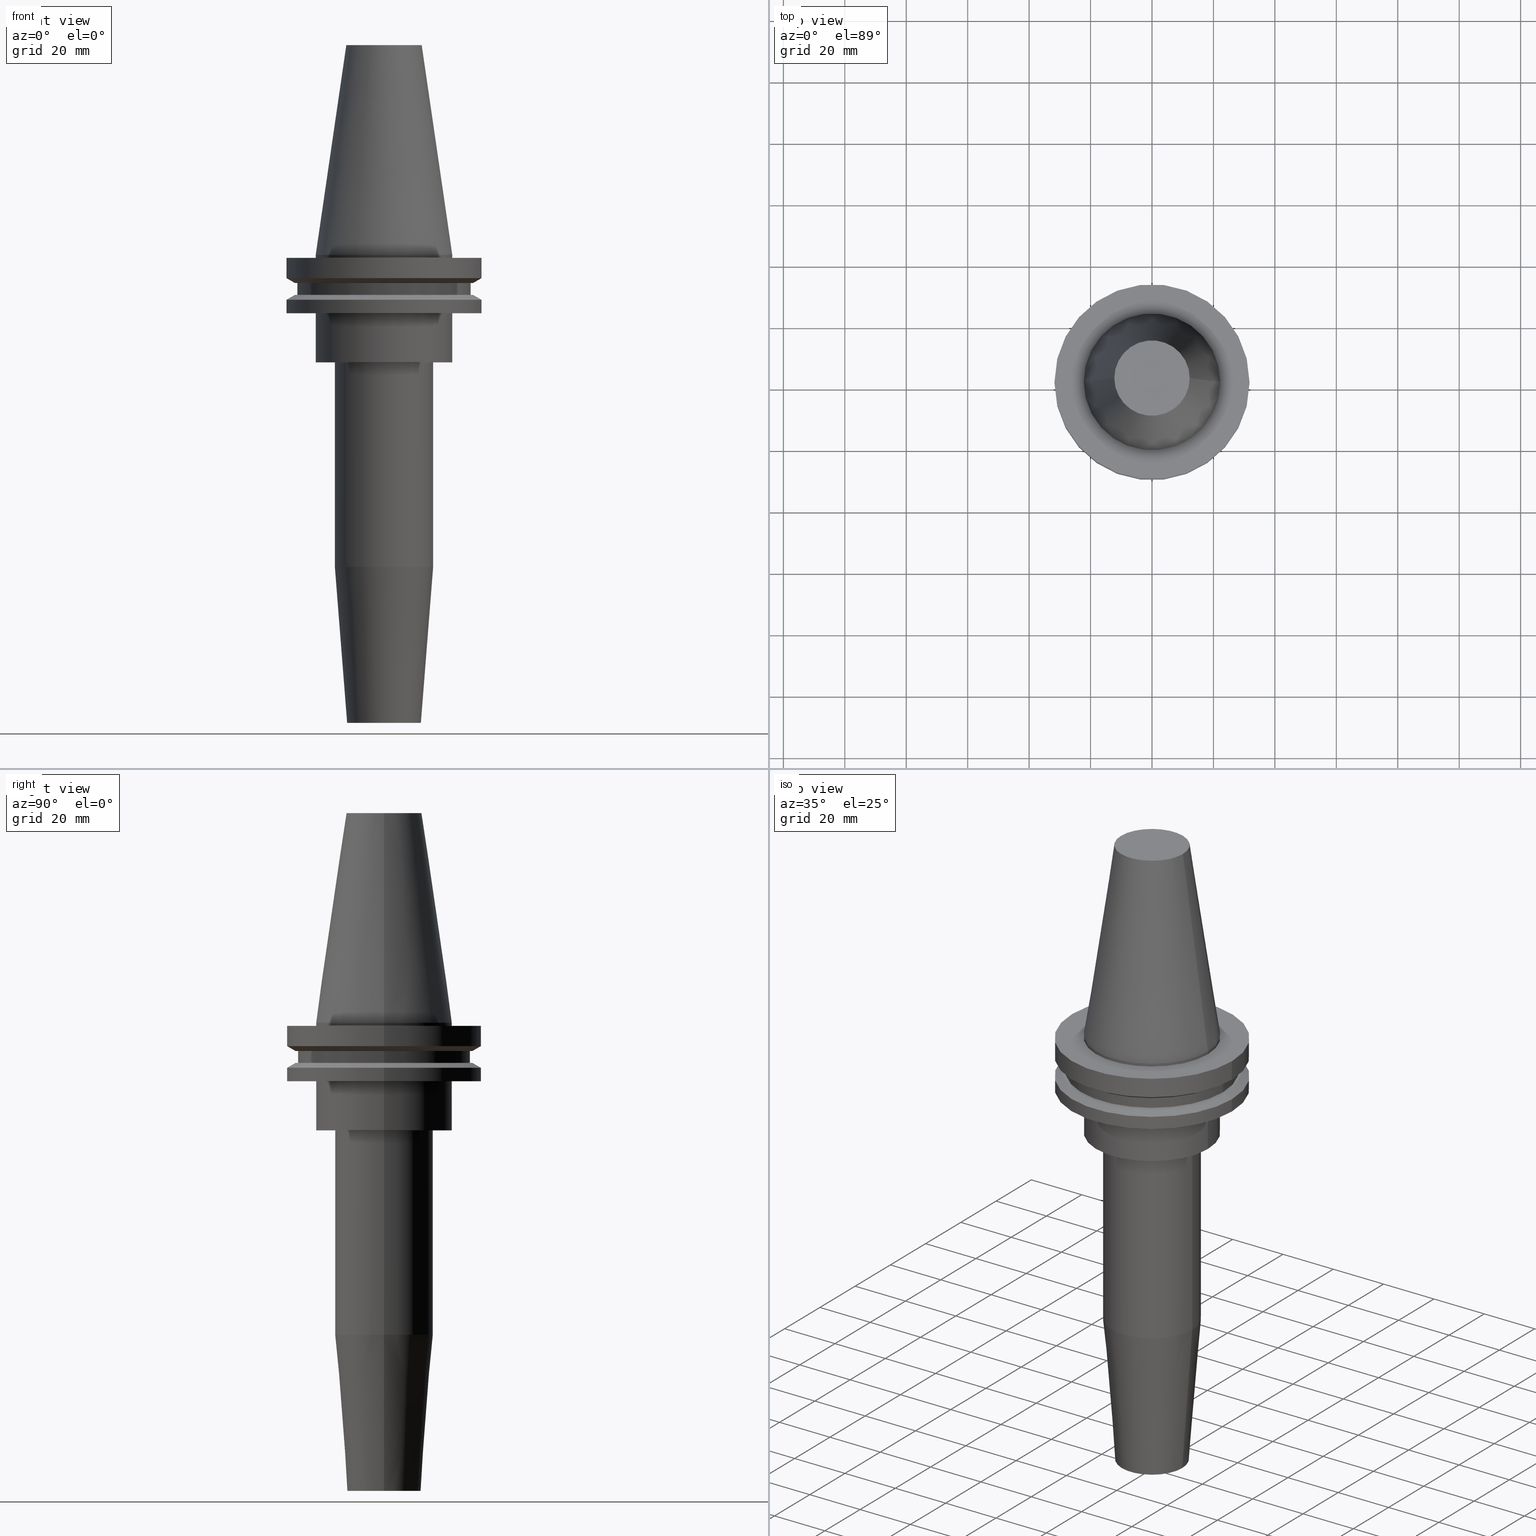
[diagram: canonical four-view strip — front | top / right | iso, engineering-drawing reading convention]
A machine part, canonical four-view strip (front | top / right | iso — engineering-drawing reading convention). The complete STEP part file that produces these views, byte-faithful:
ISO-10303-21;
HEADER;
FILE_DESCRIPTION (( 'STEP AP203' ),
    '1' );
FILE_NAME ('BCV40-SF_500-6.STEP',
    '2022-02-23T17:22:49',
    ( '' ),
    ( '' ),
    'SwSTEP 2.0',
    'SolidWorks 2021',
    '' );
FILE_SCHEMA (( 'CONFIG_CONTROL_DESIGN' ));
ENDSEC;

DATA;
#1 = CARTESIAN_POINT ( 'NONE',  ( -16.00000000000000000, 1.959434878635765131E-15, -35.04999999999999716 ) ) ;
#2 = ORIENTED_EDGE ( 'NONE', *, *, #822, .F. ) ;
#3 = ADVANCED_FACE ( 'NONE', ( #448 ), #180, .F. ) ;
#4 = DIRECTION ( 'NONE',  ( 1.000000000000000000, 0.000000000000000000, 0.000000000000000000 ) ) ;
#5 = FACE_OUTER_BOUND ( 'NONE', #274, .T. ) ;
#6 = ORIENTED_EDGE ( 'NONE', *, *, #617, .F. ) ;
#7 = AXIS2_PLACEMENT_3D ( 'NONE', #243, #240, #570 ) ;
#8 = CARTESIAN_POINT ( 'NONE',  ( 0.000000000000000000, 28.17999999999999972, -13.05499999999999794 ) ) ;
#9 = ADVANCED_FACE ( 'NONE', ( #520 ), #375, .T. ) ;
#10 = PLANE ( 'NONE',  #837 ) ;
#11 = EDGE_LOOP ( 'NONE', ( #390, #339, #176, #220 ) ) ;
#12 = CARTESIAN_POINT ( 'NONE',  ( 0.000000000000000000, 0.000000000000000000, -35.04999999999999716 ) ) ;
#13 = CARTESIAN_POINT ( 'NONE',  ( 31.75000000000000000, 0.000000000000000000, -14.65472339340266572 ) ) ;
#14 = ORIENTED_EDGE ( 'NONE', *, *, #500, .F. ) ;
#15 = CIRCLE ( 'NONE', #196, 22.22500000000000142 ) ;
#16 = PLANE ( 'NONE',  #797 ) ;
#17 = CARTESIAN_POINT ( 'NONE',  ( 0.000000000000000000, 0.000000000000000000, -101.5751810552958716 ) ) ;
#18 = ORIENTED_EDGE ( 'NONE', *, *, #641, .T. ) ;
#19 = CIRCLE ( 'NONE', #154, 28.97919780457008088 ) ;
#20 = DIRECTION ( 'NONE',  ( -0.000000000000000000, -0.000000000000000000, 1.000000000000000000 ) ) ;
#21 = CARTESIAN_POINT ( 'NONE',  ( 0.000000000000000000, 0.000000000000000000, -13.05499999999999794 ) ) ;
#22 = VERTEX_POINT ( 'NONE', #103 ) ;
#23 = CLOSED_SHELL ( 'NONE', ( #528, #671, #676, #37, #123, #590, #499, #556, #565, #151, #159, #9, #279, #591, #596, #549, #564, #650, #701, #465, #45, #188, #625, #581, #160, #218, #793, #801, #305, #3 ) ) ;
#24 =( NAMED_UNIT ( * ) SI_UNIT ( $, .STERADIAN. ) SOLID_ANGLE_UNIT ( ) );
#25 = DIRECTION ( 'NONE',  ( 1.000000000000000000, 0.000000000000000000, 0.000000000000000000 ) ) ;
#26 = ORIENTED_EDGE ( 'NONE', *, *, #437, .T. ) ;
#27 = PRODUCT_RELATED_PRODUCT_CATEGORY ( 'detail', '', ( #129 ) ) ;
#28 = LOCAL_TIME ( 11, 22, 49.00000000000000000, #431 ) ;
#29 = AXIS2_PLACEMENT_3D ( 'NONE', #208, #471, #601 ) ;
#30 = CARTESIAN_POINT ( 'NONE',  ( 0.000000000000000000, 0.000000000000000000, 0.000000000000000000 ) ) ;
#31 = ORIENTED_EDGE ( 'NONE', *, *, #382, .F. ) ;
#32 = AXIS2_PLACEMENT_3D ( 'NONE', #670, #408, #276 ) ;
#33 = DIRECTION ( 'NONE',  ( 1.000000000000000000, 0.000000000000000000, 0.000000000000000000 ) ) ;
#34 = LINE ( 'NONE', #819, #614 ) ;
#35 = EDGE_LOOP ( 'NONE', ( #800, #743, #455, #458 ) ) ;
#36 = EDGE_CURVE ( 'NONE', #814, #128, #687, .T. ) ;
#37 = ADVANCED_FACE ( 'NONE', ( #847 ), #579, .T. ) ;
#38 = CARTESIAN_POINT ( 'NONE',  ( 0.000000000000000000, 0.000000000000000000, -1.000000000000000888 ) ) ;
#39 = ORIENTED_EDGE ( 'NONE', *, *, #332, .T. ) ;
#40 = EDGE_CURVE ( 'NONE', #623, #814, #192, .T. ) ;
#41 = MECHANICAL_CONTEXT ( 'NONE', #696, 'mechanical' ) ;
#42 = DIRECTION ( 'NONE',  ( 1.000000000000000000, 0.000000000000000000, 0.000000000000000000 ) ) ;
#43 = EDGE_LOOP ( 'NONE', ( #788, #810 ) ) ;
#44 = AXIS2_PLACEMENT_3D ( 'NONE', #394, #120, #844 ) ;
#45 = ADVANCED_FACE ( 'NONE', ( #719, #127 ), #395, .F. ) ;
#46 = PERSON_AND_ORGANIZATION ( #367, #337 ) ;
#47 = FACE_OUTER_BOUND ( 'NONE', #616, .T. ) ;
#48 = ORIENTED_EDGE ( 'NONE', *, *, #648, .F. ) ;
#49 = AXIS2_PLACEMENT_3D ( 'NONE', #21, #751, #144 ) ;
#50 = APPROVAL_DATE_TIME ( #443, #521 ) ;
#51 = CARTESIAN_POINT ( 'NONE',  ( 0.000000000000000000, 0.000000000000000000, 68.25000000000000000 ) ) ;
#52 = ORIENTED_EDGE ( 'NONE', *, *, #417, .F. ) ;
#53 = LINE ( 'NONE', #200, #146 ) ;
#54 = EDGE_CURVE ( 'NONE', #290, #79, #53, .T. ) ;
#55 = PLANE ( 'NONE',  #44 ) ;
#56 = DIRECTION ( 'NONE',  ( 0.000000000000000000, -0.000000000000000000, 1.000000000000000000 ) ) ;
#57 = DATE_TIME_ROLE ( 'creation_date' ) ;
#58 = DIRECTION ( 'NONE',  ( 1.000000000000000000, 0.000000000000000000, 0.000000000000000000 ) ) ;
#59 = DIRECTION ( 'NONE',  ( -0.8660254037844387076, 0.000000000000000000, -0.4999999999999998890 ) ) ;
#60 = VERTEX_POINT ( 'NONE', #457 ) ;
#61 = VECTOR ( 'NONE', #75, 999.9999999999998863 ) ;
#62 = AXIS2_PLACEMENT_3D ( 'NONE', #51, #325, #513 ) ;
#63 = EDGE_CURVE ( 'NONE', #377, #228, #66, .T. ) ;
#64 = DATE_AND_TIME ( #527, #422 ) ;
#65 = CARTESIAN_POINT ( 'NONE',  ( 0.000000000000000000, 0.000000000000000000, 68.25000000000000000 ) ) ;
#66 = LINE ( 'NONE', #406, #315 ) ;
#67 = VERTEX_POINT ( 'NONE', #70 ) ;
#68 = CIRCLE ( 'NONE', #689, 12.27178102086201150 ) ;
#69 = DIRECTION ( 'NONE',  ( 1.000000000000000000, 0.000000000000000000, 0.000000000000000000 ) ) ;
#70 = CARTESIAN_POINT ( 'NONE',  ( 28.17999999999999972, 0.000000000000000000, -9.204999999999991189 ) ) ;
#71 = ORIENTED_EDGE ( 'NONE', *, *, #74, .F. ) ;
#72 = EDGE_CURVE ( 'NONE', #149, #145, #261, .T. ) ;
#73 = DIRECTION ( 'NONE',  ( 0.000000000000000000, 0.000000000000000000, -1.000000000000000000 ) ) ;
#74 = EDGE_CURVE ( 'NONE', #167, #526, #486, .T. ) ;
#75 = DIRECTION ( 'NONE',  ( -0.1443082272672999711, 0.000000000000000000, -0.9895327864921755756 ) ) ;
#76 = ORIENTED_EDGE ( 'NONE', *, *, #189, .F. ) ;
#77 = FACE_OUTER_BOUND ( 'NONE', #97, .T. ) ;
#78 = CARTESIAN_POINT ( 'NONE',  ( 0.000000000000000000, 0.000000000000000000, -13.05499999999999794 ) ) ;
#79 = VERTEX_POINT ( 'NONE', #594 ) ;
#80 = CARTESIAN_POINT ( 'NONE',  ( 0.000000000000000000, 0.000000000000000000, -7.605276606597335842 ) ) ;
#81 = CARTESIAN_POINT ( 'NONE',  ( 0.000000000000000000, 0.000000000000000000, -1.000000000000000888 ) ) ;
#82 = EDGE_LOOP ( 'NONE', ( #18, #563, #2, #347 ) ) ;
#83 = LINE ( 'NONE', #811, #774 ) ;
#84 = CARTESIAN_POINT ( 'NONE',  ( -12.00000000000000000, 1.469576158976823947E-15, -152.4000000000000057 ) ) ;
#85 = ORIENTED_EDGE ( 'NONE', *, *, #318, .F. ) ;
#86 = AXIS2_PLACEMENT_3D ( 'NONE', #666, #804, #338 ) ;
#87 = DIRECTION ( 'NONE',  ( -0.000000000000000000, -0.000000000000000000, 1.000000000000000000 ) ) ;
#88 = DIRECTION ( 'NONE',  ( 1.000000000000000000, 0.000000000000000000, 0.000000000000000000 ) ) ;
#89 = EDGE_LOOP ( 'NONE', ( #645, #736, #210, #225 ) ) ;
#90 = FACE_BOUND ( 'NONE', #716, .T. ) ;
#91 = DIRECTION ( 'NONE',  ( 0.8660254037844389297, 0.000000000000000000, 0.4999999999999995004 ) ) ;
#92 = VERTEX_POINT ( 'NONE', #1 ) ;
#93 = APPROVAL_PERSON_ORGANIZATION ( #366, #246, #621 ) ;
#94 = CARTESIAN_POINT ( 'NONE',  ( 22.22500000000000142, 0.000000000000000000, 68.25000000000000000 ) ) ;
#95 = EDGE_CURVE ( 'NONE', #575, #656, #852, .T. ) ;
#96 = DIRECTION ( 'NONE',  ( -0.000000000000000000, -0.000000000000000000, 1.000000000000000000 ) ) ;
#97 = EDGE_LOOP ( 'NONE', ( #703, #282, #770, #201 ) ) ;
#98 = EDGE_CURVE ( 'NONE', #656, #67, #405, .T. ) ;
#99 = APPLICATION_PROTOCOL_DEFINITION ( 'international standard', 'config_control_design', 1994, #612 ) ;
#100 = CC_DESIGN_PERSON_AND_ORGANIZATION_ASSIGNMENT ( #758, #816, ( #744 ) ) ;
#101 = VECTOR ( 'NONE', #633, 1000.000000000000000 ) ;
#102 = CARTESIAN_POINT ( 'NONE',  ( -22.22500000000000142, 2.721777511104992849E-15, 68.25000000000000000 ) ) ;
#103 = CARTESIAN_POINT ( 'NONE',  ( -12.27178102086201150, 0.000000000000000000, 68.25000000000000000 ) ) ;
#104 = CARTESIAN_POINT ( 'NONE',  ( 22.22500000000000142, 2.721777511104992849E-15, 0.000000000000000000 ) ) ;
#105 = AXIS2_PLACEMENT_3D ( 'NONE', #522, #330, #326 ) ;
#106 = CARTESIAN_POINT ( 'NONE',  ( -31.75000000000000000, 3.888253587292846476E-15, 68.25000000000000000 ) ) ;
#107 = ORIENTED_EDGE ( 'NONE', *, *, #843, .T. ) ;
#108 = AXIS2_PLACEMENT_3D ( 'NONE', #404, #661, #69 ) ;
#109 = CARTESIAN_POINT ( 'NONE',  ( 0.000000000000000000, 0.000000000000000000, 68.25000000000000000 ) ) ;
#110 = EDGE_LOOP ( 'NONE', ( #31, #363 ) ) ;
#111 = CIRCLE ( 'NONE', #560, 22.22500000000000142 ) ;
#112 = CARTESIAN_POINT ( 'NONE',  ( 22.22500000000000142, 0.000000000000000000, -1.000000000000000888 ) ) ;
#113 = DIRECTION ( 'NONE',  ( 0.000000000000000000, 0.000000000000000000, -1.000000000000000000 ) ) ;
#114 = DIRECTION ( 'NONE',  ( -1.000000000000000000, 0.000000000000000000, 0.000000000000000000 ) ) ;
#115 = PERSON_AND_ORGANIZATION_ROLE ( 'design_supplier' ) ;
#116 = LINE ( 'NONE', #313, #468 ) ;
#117 = VERTEX_POINT ( 'NONE', #515 ) ;
#118 = DIRECTION ( 'NONE',  ( -0.000000000000000000, -0.000000000000000000, 1.000000000000000000 ) ) ;
#119 = ORIENTED_EDGE ( 'NONE', *, *, #98, .T. ) ;
#120 = DIRECTION ( 'NONE',  ( 0.000000000000000000, -0.000000000000000000, 1.000000000000000000 ) ) ;
#121 = AXIS2_PLACEMENT_3D ( 'NONE', #143, #147, #484 ) ;
#122 = DIRECTION ( 'NONE',  ( 1.000000000000000000, 0.000000000000000000, 0.000000000000000000 ) ) ;
#123 = ADVANCED_FACE ( 'NONE', ( #183 ), #254, .T. ) ;
#124 = ORIENTED_EDGE ( 'NONE', *, *, #446, .F. ) ;
#125 = COORDINATED_UNIVERSAL_TIME_OFFSET ( 6, 0, .BEHIND. ) ;
#126 = FACE_OUTER_BOUND ( 'NONE', #595, .T. ) ;
#127 = FACE_BOUND ( 'NONE', #578, .T. ) ;
#128 = VERTEX_POINT ( 'NONE', #715 ) ;
#129 = PRODUCT ( 'BCV40-SF_500-6', 'BCV40-SF_500-6', '', ( #41 ) ) ;
#130 = DIRECTION ( 'NONE',  ( 1.000000000000000000, 0.000000000000000000, 0.000000000000000000 ) ) ;
#131 = CARTESIAN_POINT ( 'NONE',  ( 0.000000000000000000, 0.000000000000000000, 68.25000000000000000 ) ) ;
#132 = ORIENTED_EDGE ( 'NONE', *, *, #414, .T. ) ;
#133 = AXIS2_PLACEMENT_3D ( 'NONE', #373, #508, #699 ) ;
#134 = EDGE_CURVE ( 'NONE', #22, #396, #68, .T. ) ;
#135 = EDGE_CURVE ( 'NONE', #60, #836, #462, .T. ) ;
#136 = DIRECTION ( 'NONE',  ( -0.000000000000000000, -0.000000000000000000, 1.000000000000000000 ) ) ;
#137 = LINE ( 'NONE', #84, #806 ) ;
#138 = VERTEX_POINT ( 'NONE', #849 ) ;
#139 = PRODUCT_DEFINITION_FORMATION_WITH_SPECIFIED_SOURCE ( 'ANY', '', #129, .NOT_KNOWN. ) ;
#140 = FACE_OUTER_BOUND ( 'NONE', #185, .T. ) ;
#141 = DIRECTION ( 'NONE',  ( -0.07845909572783678343, 9.608468044709108930E-18, 0.9969173337331286300 ) ) ;
#142 = ORIENTED_EDGE ( 'NONE', *, *, #321, .T. ) ;
#143 = CARTESIAN_POINT ( 'NONE',  ( 0.000000000000000000, 0.000000000000000000, -152.4000000000000057 ) ) ;
#144 = DIRECTION ( 'NONE',  ( 1.000000000000000000, 0.000000000000000000, 0.000000000000000000 ) ) ;
#145 = VERTEX_POINT ( 'NONE', #258 ) ;
#146 = VECTOR ( 'NONE', #59, 1000.000000000000000 ) ;
#147 = DIRECTION ( 'NONE',  ( -0.000000000000000000, -0.000000000000000000, 1.000000000000000000 ) ) ;
#148 = CARTESIAN_POINT ( 'NONE',  ( 0.000000000000000000, 0.000000000000000000, -1.000000000000000888 ) ) ;
#149 = VERTEX_POINT ( 'NONE', #320 ) ;
#150 = CARTESIAN_POINT ( 'NONE',  ( -31.75000000000000000, 3.888253587292846476E-15, 68.25000000000000000 ) ) ;
#151 = ADVANCED_FACE ( 'NONE', ( #401 ), #534, .T. ) ;
#152 = DIRECTION ( 'NONE',  ( 1.000000000000000000, 0.000000000000000000, 0.000000000000000000 ) ) ;
#153 = ORIENTED_EDGE ( 'NONE', *, *, #135, .F. ) ;
#154 = AXIS2_PLACEMENT_3D ( 'NONE', #78, #209, #224 ) ;
#155 = DIRECTION ( 'NONE',  ( -0.000000000000000000, -0.000000000000000000, 1.000000000000000000 ) ) ;
#156 = LINE ( 'NONE', #510, #658 ) ;
#157 = ORIENTED_EDGE ( 'NONE', *, *, #802, .T. ) ;
#158 = CONICAL_SURFACE ( 'NONE', #403, 31.75000000000000000, 1.047197551196597853 ) ;
#159 = ADVANCED_FACE ( 'NONE', ( #791 ), #854, .T. ) ;
#160 = ADVANCED_FACE ( 'NONE', ( #386 ), #646, .T. ) ;
#161 = DIRECTION ( 'NONE',  ( -0.000000000000000000, -0.000000000000000000, 1.000000000000000000 ) ) ;
#162 = ORIENTED_EDGE ( 'NONE', *, *, #628, .F. ) ;
#163 = CC_DESIGN_PERSON_AND_ORGANIZATION_ASSIGNMENT ( #392, #115, ( #139 ) ) ;
#164 = CIRCLE ( 'NONE', #364, 6.350000000000003197 ) ;
#165 = APPLICATION_PROTOCOL_DEFINITION ( 'international standard', 'config_control_design', 1994, #696 ) ;
#166 = DIRECTION ( 'NONE',  ( 1.000000000000000000, 0.000000000000000000, 0.000000000000000000 ) ) ;
#167 = VERTEX_POINT ( 'NONE', #423 ) ;
#168 = AXIS2_PLACEMENT_3D ( 'NONE', #109, #199, #447 ) ;
#169 = LINE ( 'NONE', #150, #789 ) ;
#170 = CIRCLE ( 'NONE', #683, 22.22500000000000142 ) ;
#171 = CARTESIAN_POINT ( 'NONE',  ( 0.000000000000000000, 0.000000000000000000, 68.25000000000000000 ) ) ;
#172 = EDGE_LOOP ( 'NONE', ( #331, #162 ) ) ;
#173 = ORIENTED_EDGE ( 'NONE', *, *, #134, .F. ) ;
#174 = APPROVAL_STATUS ( 'not_yet_approved' ) ;
#175 = DIRECTION ( 'NONE',  ( 1.000000000000000000, 0.000000000000000000, 0.000000000000000000 ) ) ;
#176 = ORIENTED_EDGE ( 'NONE', *, *, #827, .T. ) ;
#177 = EDGE_LOOP ( 'NONE', ( #132, #107, #335, #663 ) ) ;
#178 = CC_DESIGN_APPROVAL ( #182, ( #292 ) ) ;
#179 = DIRECTION ( 'NONE',  ( 1.000000000000000000, 0.000000000000000000, 0.000000000000000000 ) ) ;
#180 = PLANE ( 'NONE',  #825 ) ;
#181 = MANIFOLD_SOLID_BREP ( 'SF', #23 ) ;
#182 = APPROVAL ( #174, 'UNSPECIFIED' ) ;
#183 = FACE_OUTER_BOUND ( 'NONE', #177, .T. ) ;
#184 = CYLINDRICAL_SURFACE ( 'NONE', #62, 31.75000000000000000 ) ;
#185 = EDGE_LOOP ( 'NONE', ( #436, #441 ) ) ;
#186 = CARTESIAN_POINT ( 'NONE',  ( 0.000000000000000000, 0.000000000000000000, -9.204999999999991189 ) ) ;
#187 = ORIENTED_EDGE ( 'NONE', *, *, #54, .F. ) ;
#188 = ADVANCED_FACE ( 'NONE', ( #5 ), #400, .T. ) ;
#189 = EDGE_CURVE ( 'NONE', #92, #853, #576, .T. ) ;
#190 = FACE_BOUND ( 'NONE', #636, .T. ) ;
#191 = AXIS2_PLACEMENT_3D ( 'NONE', #445, #113, #694 ) ;
#192 = LINE ( 'NONE', #780, #568 ) ;
#193 = VERTEX_POINT ( 'NONE', #538 ) ;
#194 = EDGE_CURVE ( 'NONE', #128, #814, #242, .T. ) ;
#195 = CARTESIAN_POINT ( 'NONE',  ( 0.000000000000000000, 0.000000000000000000, -9.205000000000005400 ) ) ;
#196 = AXIS2_PLACEMENT_3D ( 'NONE', #239, #569, #501 ) ;
#197 = DIRECTION ( 'NONE',  ( -0.000000000000000000, -0.000000000000000000, 1.000000000000000000 ) ) ;
#198 = EDGE_LOOP ( 'NONE', ( #552, #767, #48, #6 ) ) ;
#199 = DIRECTION ( 'NONE',  ( -0.000000000000000000, -0.000000000000000000, 1.000000000000000000 ) ) ;
#200 = CARTESIAN_POINT ( 'NONE',  ( -31.75000000000000000, 0.000000000000000000, -14.65472339340266572 ) ) ;
#201 = ORIENTED_EDGE ( 'NONE', *, *, #345, .F. ) ;
#202 = AXIS2_PLACEMENT_3D ( 'NONE', #81, #426, #152 ) ;
#203 = AXIS2_PLACEMENT_3D ( 'NONE', #851, #644, #260 ) ;
#204 = CARTESIAN_POINT ( 'NONE',  ( 31.75000000000000000, 0.000000000000000000, 68.25000000000000000 ) ) ;
#205 = CARTESIAN_POINT ( 'NONE',  ( 0.000000000000000000, 12.27178102086201150, 68.25000000000000000 ) ) ;
#206 = VERTEX_POINT ( 'NONE', #214 ) ;
#207 = AXIS2_PLACEMENT_3D ( 'NONE', #334, #118, #449 ) ;
#208 = CARTESIAN_POINT ( 'NONE',  ( 0.000000000000000000, 0.000000000000000000, -35.04999999999999716 ) ) ;
#209 = DIRECTION ( 'NONE',  ( -0.000000000000000000, -0.000000000000000000, 1.000000000000000000 ) ) ;
#210 = ORIENTED_EDGE ( 'NONE', *, *, #387, .T. ) ;
#211 = LOCAL_TIME ( 11, 22, 49.00000000000000000, #125 ) ;
#212 = CIRCLE ( 'NONE', #323, 31.74999999999999289 ) ;
#213 = CARTESIAN_POINT ( 'NONE',  ( -28.17999999999999972, 3.451054679997241634E-15, -9.204999999999991189 ) ) ;
#214 = CARTESIAN_POINT ( 'NONE',  ( 28.17999999999999972, 0.000000000000000000, -13.05499999999999794 ) ) ;
#215 = ORIENTED_EDGE ( 'NONE', *, *, #753, .F. ) ;
#216 = CIRCLE ( 'NONE', #467, 6.350000000000003197 ) ;
#217 = CARTESIAN_POINT ( 'NONE',  ( 0.000000000000000000, 0.000000000000000000, -9.205000000000005400 ) ) ;
#218 = ADVANCED_FACE ( 'NONE', ( #543 ), #410, .T. ) ;
#219 = CARTESIAN_POINT ( 'NONE',  ( 6.350000000000004974, 0.000000000000000000, 0.000000000000000000 ) ) ;
#220 = ORIENTED_EDGE ( 'NONE', *, *, #332, .F. ) ;
#221 = VECTOR ( 'NONE', #530, 1000.000000000000000 ) ;
#222 = CC_DESIGN_PERSON_AND_ORGANIZATION_ASSIGNMENT ( #46, #459, ( #292 ) ) ;
#223 = CARTESIAN_POINT ( 'NONE',  ( 0.000000000000000000, 12.00000000000000000, -152.4000000000000057 ) ) ;
#224 = DIRECTION ( 'NONE',  ( 1.000000000000000000, 0.000000000000000000, 0.000000000000000000 ) ) ;
#225 = ORIENTED_EDGE ( 'NONE', *, *, #229, .F. ) ;
#226 = DIRECTION ( 'NONE',  ( 1.000000000000000000, 0.000000000000000000, 0.000000000000000000 ) ) ;
#227 = CARTESIAN_POINT ( 'NONE',  ( 28.97919780457008088, 3.718590885307660666E-15, -13.05499999999999794 ) ) ;
#228 = VERTEX_POINT ( 'NONE', #13 ) ;
#229 = EDGE_CURVE ( 'NONE', #22, #138, #679, .T. ) ;
#230 = AXIS2_PLACEMENT_3D ( 'NONE', #550, #20, #611 ) ;
#231 = AXIS2_PLACEMENT_3D ( 'NONE', #480, #795, #286 ) ;
#232 = CARTESIAN_POINT ( 'NONE',  ( 0.000000000000000000, 0.000000000000000000, 0.000000000000000000 ) ) ;
#233 = CARTESIAN_POINT ( 'NONE',  ( -28.97919780457007732, 3.548928183322474856E-15, -9.205000000000005400 ) ) ;
#234 = EDGE_LOOP ( 'NONE', ( #675, #567, #157, #380 ) ) ;
#235 = CARTESIAN_POINT ( 'NONE',  ( 0.000000000000000000, 0.000000000000000000, -14.65472339340266572 ) ) ;
#236 = FACE_OUTER_BOUND ( 'NONE', #296, .T. ) ;
#237 = ORIENTED_EDGE ( 'NONE', *, *, #259, .T. ) ;
#238 = CC_DESIGN_SECURITY_CLASSIFICATION ( #292, ( #139 ) ) ;
#239 = CARTESIAN_POINT ( 'NONE',  ( 0.000000000000000000, 0.000000000000000000, 0.000000000000000000 ) ) ;
#240 = DIRECTION ( 'NONE',  ( -0.000000000000000000, -0.000000000000000000, 1.000000000000000000 ) ) ;
#241 = ORIENTED_EDGE ( 'NONE', *, *, #843, .F. ) ;
#242 = CIRCLE ( 'NONE', #202, 31.75000000000000000 ) ;
#243 = CARTESIAN_POINT ( 'NONE',  ( 0.000000000000000000, 0.000000000000000000, -13.05499999999999794 ) ) ;
#244 = ORIENTED_EDGE ( 'NONE', *, *, #532, .T. ) ;
#245 = APPROVAL_DATE_TIME ( #64, #182 ) ;
#246 = APPROVAL ( #685, 'UNSPECIFIED' ) ;
#247 = FACE_OUTER_BOUND ( 'NONE', #756, .T. ) ;
#248 = ORIENTED_EDGE ( 'NONE', *, *, #768, .T. ) ;
#249 = DIRECTION ( 'NONE',  ( -0.000000000000000000, -0.000000000000000000, 1.000000000000000000 ) ) ;
#250 = ADVANCED_BREP_SHAPE_REPRESENTATION ( 'BCV40-SF_500-6', ( #181, #409 ), #829 ) ;
#251 = AXIS2_PLACEMENT_3D ( 'NONE', #745, #807, #4 ) ;
#252 = CARTESIAN_POINT ( 'NONE',  ( 0.000000000000000000, 22.22499999999999787, -35.04999999999999716 ) ) ;
#253 = ORIENTED_EDGE ( 'NONE', *, *, #318, .T. ) ;
#254 = CYLINDRICAL_SURFACE ( 'NONE', #580, 31.75000000000000000 ) ;
#255 = EDGE_CURVE ( 'NONE', #599, #574, #170, .T. ) ;
#256 = EDGE_CURVE ( 'NONE', #145, #453, #137, .T. ) ;
#257 = DIRECTION ( 'NONE',  ( -1.000000000000000000, 0.000000000000000000, 0.000000000000000000 ) ) ;
#258 = CARTESIAN_POINT ( 'NONE',  ( -12.00000000000000000, 1.714505518806294638E-15, -152.4000000000000057 ) ) ;
#259 = EDGE_CURVE ( 'NONE', #575, #206, #312, .T. ) ;
#260 = DIRECTION ( 'NONE',  ( 1.000000000000000000, 0.000000000000000000, 0.000000000000000000 ) ) ;
#261 = CIRCLE ( 'NONE', #360, 12.00000000000000000 ) ;
#262 = CARTESIAN_POINT ( 'NONE',  ( 0.000000000000000000, 28.97919780457007732, -9.204999999999996518 ) ) ;
#263 = ORIENTED_EDGE ( 'NONE', *, *, #812, .T. ) ;
#264 = DIRECTION ( 'NONE',  ( 1.000000000000000000, 0.000000000000000000, 0.000000000000000000 ) ) ;
#265 = CIRCLE ( 'NONE', #476, 28.17999999999999972 ) ;
#266 = DIRECTION ( 'NONE',  ( 1.000000000000000000, 0.000000000000000000, 0.000000000000000000 ) ) ;
#267 = ORIENTED_EDGE ( 'NONE', *, *, #189, .T. ) ;
#268 = DIRECTION ( 'NONE',  ( -1.000000000000000000, 0.000000000000000000, -0.000000000000000000 ) ) ;
#269 = DIRECTION ( 'NONE',  ( -0.000000000000000000, -0.000000000000000000, 1.000000000000000000 ) ) ;
#270 = ORIENTED_EDGE ( 'NONE', *, *, #492, .F. ) ;
#271 = AXIS2_PLACEMENT_3D ( 'NONE', #609, #419, #281 ) ;
#272 = DIRECTION ( 'NONE',  ( -0.000000000000000000, -0.000000000000000000, 1.000000000000000000 ) ) ;
#273 = CARTESIAN_POINT ( 'NONE',  ( 0.000000000000000000, 0.000000000000000000, 0.000000000000000000 ) ) ;
#274 = EDGE_LOOP ( 'NONE', ( #427, #714, #407, #429 ) ) ;
#275 = DESIGN_CONTEXT ( 'detailed design', #612, 'design' ) ;
#276 = DIRECTION ( 'NONE',  ( 1.000000000000000000, 0.000000000000000000, 0.000000000000000000 ) ) ;
#277 = CARTESIAN_POINT ( 'NONE',  ( 0.000000000000000000, 0.000000000000000000, -116.4000000000000341 ) ) ;
#278 = ORIENTED_EDGE ( 'NONE', *, *, #387, .F. ) ;
#279 = ADVANCED_FACE ( 'NONE', ( #681 ), #10, .F. ) ;
#280 = FACE_BOUND ( 'NONE', #760, .T. ) ;
#281 = DIRECTION ( 'NONE',  ( 1.000000000000000000, 0.000000000000000000, 0.000000000000000000 ) ) ;
#282 = ORIENTED_EDGE ( 'NONE', *, *, #374, .T. ) ;
#283 = CC_DESIGN_DATE_AND_TIME_ASSIGNMENT ( #711, #57, ( #744 ) ) ;
#284 = CIRCLE ( 'NONE', #592, 28.97919780457007732 ) ;
#285 = DIRECTION ( 'NONE',  ( -0.000000000000000000, -0.000000000000000000, 1.000000000000000000 ) ) ;
#286 = DIRECTION ( 'NONE',  ( 1.000000000000000000, 0.000000000000000000, 0.000000000000000000 ) ) ;
#287 = ORIENTED_EDGE ( 'NONE', *, *, #684, .F. ) ;
#288 = DATE_AND_TIME ( #488, #815 ) ;
#289 = DIRECTION ( 'NONE',  ( 1.000000000000000000, 0.000000000000000000, 0.000000000000000000 ) ) ;
#290 = VERTEX_POINT ( 'NONE', #554 ) ;
#291 = EDGE_CURVE ( 'NONE', #206, #67, #551, .T. ) ;
#292 = SECURITY_CLASSIFICATION ( '', '', #518 ) ;
#293 = AXIS2_PLACEMENT_3D ( 'NONE', #706, #328, #257 ) ;
#294 = CARTESIAN_POINT ( 'NONE',  ( 31.75000000000000000, 0.000000000000000000, -1.000000000000000888 ) ) ;
#295 = DIRECTION ( 'NONE',  ( -0.000000000000000000, -0.000000000000000000, 1.000000000000000000 ) ) ;
#296 = EDGE_LOOP ( 'NONE', ( #544, #237, #784, #531 ) ) ;
#297 = CARTESIAN_POINT ( 'NONE',  ( 0.000000000000000000, 0.000000000000000000, 68.25000000000000000 ) ) ;
#298 = ORIENTED_EDGE ( 'NONE', *, *, #382, .T. ) ;
#299 = AXIS2_PLACEMENT_3D ( 'NONE', #131, #708, #122 ) ;
#300 = FACE_OUTER_BOUND ( 'NONE', #172, .T. ) ;
#301 = LINE ( 'NONE', #766, #101 ) ;
#302 = ORIENTED_EDGE ( 'NONE', *, *, #500, .T. ) ;
#303 = EDGE_LOOP ( 'NONE', ( #660, #481, #688, #732 ) ) ;
#304 = AXIS2_PLACEMENT_3D ( 'NONE', #235, #155, #33 ) ;
#305 = ADVANCED_FACE ( 'NONE', ( #731 ), #546, .F. ) ;
#306 = PERSON_AND_ORGANIZATION ( #367, #337 ) ;
#307 = DIRECTION ( 'NONE',  ( -0.000000000000000000, -0.000000000000000000, 1.000000000000000000 ) ) ;
#308 = DIRECTION ( 'NONE',  ( 0.000000000000000000, -0.000000000000000000, 1.000000000000000000 ) ) ;
#309 = ORIENTED_EDGE ( 'NONE', *, *, #704, .T. ) ;
#310 = EDGE_CURVE ( 'NONE', #290, #377, #19, .T. ) ;
#311 = PERSON_AND_ORGANIZATION ( #367, #337 ) ;
#312 = CIRCLE ( 'NONE', #49, 28.17999999999999972 ) ;
#313 = CARTESIAN_POINT ( 'NONE',  ( 12.00000000000000000, 0.000000000000000000, -152.4000000000000057 ) ) ;
#314 = ORIENTED_EDGE ( 'NONE', *, *, #95, .T. ) ;
#315 = VECTOR ( 'NONE', #649, 1000.000000000000000 ) ;
#316 = CARTESIAN_POINT ( 'NONE',  ( 6.350000000000007638, 0.000000000000000000, -152.4000000000000057 ) ) ;
#317 = VECTOR ( 'NONE', #723, 1000.000000000000000 ) ;
#318 = EDGE_CURVE ( 'NONE', #805, #836, #216, .T. ) ;
#319 = ORIENTED_EDGE ( 'NONE', *, *, #802, .F. ) ;
#320 = CARTESIAN_POINT ( 'NONE',  ( 12.00000000000000000, 0.000000000000000000, -152.4000000000000057 ) ) ;
#321 = EDGE_CURVE ( 'NONE', #453, #667, #726, .T. ) ;
#322 = PERSON_AND_ORGANIZATION ( #367, #337 ) ;
#323 = AXIS2_PLACEMENT_3D ( 'NONE', #389, #582, #647 ) ;
#324 = EDGE_CURVE ( 'NONE', #396, #22, #605, .T. ) ;
#325 = DIRECTION ( 'NONE',  ( -0.000000000000000000, -0.000000000000000000, 1.000000000000000000 ) ) ;
#326 = DIRECTION ( 'NONE',  ( 1.000000000000000000, 0.000000000000000000, 0.000000000000000000 ) ) ;
#327 = DATE_AND_TIME ( #381, #690 ) ;
#328 = DIRECTION ( 'NONE',  ( 0.000000000000000000, 0.000000000000000000, -1.000000000000000000 ) ) ;
#329 = AXIS2_PLACEMENT_3D ( 'NONE', #38, #161, #42 ) ;
#330 = DIRECTION ( 'NONE',  ( -0.000000000000000000, -0.000000000000000000, 1.000000000000000000 ) ) ;
#331 = ORIENTED_EDGE ( 'NONE', *, *, #72, .F. ) ;
#332 = EDGE_CURVE ( 'NONE', #634, #805, #809, .T. ) ;
#333 = CYLINDRICAL_SURFACE ( 'NONE', #168, 31.75000000000000000 ) ;
#334 = CARTESIAN_POINT ( 'NONE',  ( 0.000000000000000000, 0.000000000000000000, 68.25000000000000000 ) ) ;
#335 = ORIENTED_EDGE ( 'NONE', *, *, #36, .F. ) ;
#336 = FACE_OUTER_BOUND ( 'NONE', #35, .T. ) ;
#337 = ORGANIZATION ( 'UNSPECIFIED', 'UNSPECIFIED', '' ) ;
#338 = DIRECTION ( 'NONE',  ( 1.000000000000000000, 0.000000000000000000, 0.000000000000000000 ) ) ;
#339 = ORIENTED_EDGE ( 'NONE', *, *, #135, .T. ) ;
#340 = DIRECTION ( 'NONE',  ( -0.000000000000000000, -0.000000000000000000, 1.000000000000000000 ) ) ;
#341 = DIRECTION ( 'NONE',  ( 1.000000000000000000, 0.000000000000000000, 0.000000000000000000 ) ) ;
#342 = EDGE_LOOP ( 'NONE', ( #153, #503, #39, #253 ) ) ;
#343 = CIRCLE ( 'NONE', #329, 22.22500000000000142 ) ;
#344 = FACE_OUTER_BOUND ( 'NONE', #198, .T. ) ;
#345 = EDGE_CURVE ( 'NONE', #667, #853, #746, .T. ) ;
#346 = CARTESIAN_POINT ( 'NONE',  ( 0.000000000000000000, 0.000000000000000000, -9.205000000000005400 ) ) ;
#347 = ORIENTED_EDGE ( 'NONE', *, *, #712, .F. ) ;
#348 = EDGE_CURVE ( 'NONE', #377, #290, #383, .T. ) ;
#349 = DIRECTION ( 'NONE',  ( -1.000000000000000000, 0.000000000000000000, 0.000000000000000000 ) ) ;
#350 = CIRCLE ( 'NONE', #121, 6.350000000000007638 ) ;
#351 = DIRECTION ( 'NONE',  ( -0.000000000000000000, -0.000000000000000000, 1.000000000000000000 ) ) ;
#352 = CONICAL_SURFACE ( 'NONE', #833, 28.97919780457007732, 1.047197551196598297 ) ;
#353 = CARTESIAN_POINT ( 'NONE',  ( 0.000000000000000000, 0.000000000000000000, -14.65472339340266572 ) ) ;
#354 = DIRECTION ( 'NONE',  ( 1.000000000000000000, 0.000000000000000000, 0.000000000000000000 ) ) ;
#355 = ORIENTED_EDGE ( 'NONE', *, *, #641, .F. ) ;
#356 = VECTOR ( 'NONE', #485, 1000.000000000000000 ) ;
#357 = CARTESIAN_POINT ( 'NONE',  ( 0.000000000000000000, 0.000000000000000000, -19.04999999999999716 ) ) ;
#358 = ORIENTED_EDGE ( 'NONE', *, *, #781, .T. ) ;
#359 = CIRCLE ( 'NONE', #839, 16.00000000000000000 ) ;
#360 = AXIS2_PLACEMENT_3D ( 'NONE', #842, #249, #266 ) ;
#361 = CARTESIAN_POINT ( 'NONE',  ( 6.350000000000003197, 0.000000000000000000, -116.4000000000000341 ) ) ;
#362 = CARTESIAN_POINT ( 'NONE',  ( -22.22500000000000142, 2.721777511104992849E-15, -19.04999999999999716 ) ) ;
#363 = ORIENTED_EDGE ( 'NONE', *, *, #255, .F. ) ;
#364 = AXIS2_PLACEMENT_3D ( 'NONE', #439, #506, #765 ) ;
#365 = AXIS2_PLACEMENT_3D ( 'NONE', #30, #295, #562 ) ;
#366 = PERSON_AND_ORGANIZATION ( #367, #337 ) ;
#367 = PERSON ( 'UNSPECIFIED', 'UNSPECIFIED', 'UNSPECIFIED', ('UNSPECIFIED'), ('UNSPECIFIED'), ('UNSPECIFIED') ) ;
#368 = DIRECTION ( 'NONE',  ( -0.000000000000000000, -0.000000000000000000, 1.000000000000000000 ) ) ;
#369 = VERTEX_POINT ( 'NONE', #362 ) ;
#370 = VECTOR ( 'NONE', #307, 1000.000000000000000 ) ;
#371 = COORDINATED_UNIVERSAL_TIME_OFFSET ( 6, 0, .BEHIND. ) ;
#372 = CARTESIAN_POINT ( 'NONE',  ( 0.000000000000000000, 0.000000000000000000, -9.205000000000005400 ) ) ;
#373 = CARTESIAN_POINT ( 'NONE',  ( 0.000000000000000000, 0.000000000000000000, -1.000000000000000888 ) ) ;
#374 = EDGE_CURVE ( 'NONE', #453, #92, #635, .T. ) ;
#375 = CONICAL_SURFACE ( 'NONE', #191, 22.22500000000000142, 0.1448138465474119174 ) ;
#376 = CARTESIAN_POINT ( 'NONE',  ( -16.00000000000000000, 1.959434878635765131E-15, 0.000000000000000000 ) ) ;
#377 = VERTEX_POINT ( 'NONE', #227 ) ;
#378 = VECTOR ( 'NONE', #87, 1000.000000000000000 ) ;
#379 = FACE_OUTER_BOUND ( 'NONE', #620, .T. ) ;
#380 = ORIENTED_EDGE ( 'NONE', *, *, #812, .F. ) ;
#381 = CALENDAR_DATE ( 2022, 23, 2 ) ;
#382 = EDGE_CURVE ( 'NONE', #574, #599, #343, .T. ) ;
#383 = CIRCLE ( 'NONE', #7, 28.97919780457008088 ) ;
#384 = FACE_BOUND ( 'NONE', #424, .T. ) ;
#385 = EDGE_LOOP ( 'NONE', ( #555, #173, #511, #263 ) ) ;
#386 = FACE_OUTER_BOUND ( 'NONE', #234, .T. ) ;
#387 = EDGE_CURVE ( 'NONE', #841, #138, #821, .T. ) ;
#388 = SHAPE_DEFINITION_REPRESENTATION ( #585, #250 ) ;
#389 = CARTESIAN_POINT ( 'NONE',  ( 0.000000000000000000, 0.000000000000000000, -19.04999999999999716 ) ) ;
#390 = ORIENTED_EDGE ( 'NONE', *, *, #437, .F. ) ;
#391 = CARTESIAN_POINT ( 'NONE',  ( 0.000000000000000000, 0.000000000000000000, 0.000000000000000000 ) ) ;
#392 = PERSON_AND_ORGANIZATION ( #367, #337 ) ;
#393 = CC_DESIGN_APPROVAL ( #246, ( #744 ) ) ;
#394 = CARTESIAN_POINT ( 'NONE',  ( 0.000000000000000000, 31.74999999999999289, -19.04999999999999716 ) ) ;
#395 = PLANE ( 'NONE',  #785 ) ;
#396 = VERTEX_POINT ( 'NONE', #686 ) ;
#397 = AXIS2_PLACEMENT_3D ( 'NONE', #848, #722, #524 ) ;
#398 = CALENDAR_DATE ( 2022, 23, 2 ) ;
#399 = FACE_OUTER_BOUND ( 'NONE', #700, .T. ) ;
#400 = CONICAL_SURFACE ( 'NONE', #738, 28.97919780457007732, 1.047197551196598297 ) ;
#401 = FACE_OUTER_BOUND ( 'NONE', #607, .T. ) ;
#402 = ORIENTED_EDGE ( 'NONE', *, *, #710, .T. ) ;
#403 = AXIS2_PLACEMENT_3D ( 'NONE', #353, #73, #349 ) ;
#404 = CARTESIAN_POINT ( 'NONE',  ( 0.000000000000000000, 0.000000000000000000, -9.204999999999991189 ) ) ;
#405 = CIRCLE ( 'NONE', #512, 28.17999999999999972 ) ;
#406 = CARTESIAN_POINT ( 'NONE',  ( 31.75000000000000000, 3.888253587292846476E-15, -14.65472339340266572 ) ) ;
#407 = ORIENTED_EDGE ( 'NONE', *, *, #412, .T. ) ;
#408 = DIRECTION ( 'NONE',  ( -0.000000000000000000, -0.000000000000000000, 1.000000000000000000 ) ) ;
#409 = AXIS2_PLACEMENT_3D ( 'NONE', #232, #496, #754 ) ;
#410 = CYLINDRICAL_SURFACE ( 'NONE', #231, 16.00000000000000000 ) ;
#411 = ORIENTED_EDGE ( 'NONE', *, *, #704, .F. ) ;
#412 = EDGE_CURVE ( 'NONE', #603, #623, #156, .T. ) ;
#413 = DIRECTION ( 'NONE',  ( 0.000000000000000000, 0.000000000000000000, -1.000000000000000000 ) ) ;
#414 = EDGE_CURVE ( 'NONE', #623, #571, #509, .T. ) ;
#415 = DIRECTION ( 'NONE',  ( -0.000000000000000000, -0.000000000000000000, 1.000000000000000000 ) ) ;
#416 = ORIENTED_EDGE ( 'NONE', *, *, #740, .T. ) ;
#417 = EDGE_CURVE ( 'NONE', #167, #369, #693, .T. ) ;
#418 = DIRECTION ( 'NONE',  ( -0.000000000000000000, -0.000000000000000000, 1.000000000000000000 ) ) ;
#419 = DIRECTION ( 'NONE',  ( -0.000000000000000000, -0.000000000000000000, 1.000000000000000000 ) ) ;
#420 = ORIENTED_EDGE ( 'NONE', *, *, #134, .T. ) ;
#421 = DIRECTION ( 'NONE',  ( -0.000000000000000000, -0.000000000000000000, 1.000000000000000000 ) ) ;
#422 = LOCAL_TIME ( 11, 22, 49.00000000000000000, #657 ) ;
#423 = CARTESIAN_POINT ( 'NONE',  ( -22.22499999999999787, 2.721777511104992454E-15, -35.04999999999999716 ) ) ;
#424 = EDGE_LOOP ( 'NONE', ( #771, #267 ) ) ;
#425 = AXIS2_PLACEMENT_3D ( 'NONE', #297, #627, #558 ) ;
#426 = DIRECTION ( 'NONE',  ( -0.000000000000000000, -0.000000000000000000, 1.000000000000000000 ) ) ;
#427 = ORIENTED_EDGE ( 'NONE', *, *, #540, .F. ) ;
#428 = CYLINDRICAL_SURFACE ( 'NONE', #365, 6.350000000000004974 ) ;
#429 = ORIENTED_EDGE ( 'NONE', *, *, #776, .F. ) ;
#430 = CC_DESIGN_PERSON_AND_ORGANIZATION_ASSIGNMENT ( #311, #450, ( #139 ) ) ;
#431 = COORDINATED_UNIVERSAL_TIME_OFFSET ( 6, 0, .BEHIND. ) ;
#432 = FACE_OUTER_BOUND ( 'NONE', #494, .T. ) ;
#433 = ORIENTED_EDGE ( 'NONE', *, *, #374, .F. ) ;
#434 = AXIS2_PLACEMENT_3D ( 'NONE', #80, #421, #678 ) ;
#435 = DIRECTION ( 'NONE',  ( -0.000000000000000000, -0.000000000000000000, 1.000000000000000000 ) ) ;
#436 = ORIENTED_EDGE ( 'NONE', *, *, #310, .T. ) ;
#437 = EDGE_CURVE ( 'NONE', #60, #634, #850, .T. ) ;
#438 = AXIS2_PLACEMENT_3D ( 'NONE', #824, #762, #166 ) ;
#439 = CARTESIAN_POINT ( 'NONE',  ( 0.000000000000000000, 0.000000000000000000, -116.4000000000000341 ) ) ;
#440 = DIRECTION ( 'NONE',  ( 1.000000000000000000, 0.000000000000000000, 0.000000000000000000 ) ) ;
#441 = ORIENTED_EDGE ( 'NONE', *, *, #348, .T. ) ;
#442 = ORIENTED_EDGE ( 'NONE', *, *, #781, .F. ) ;
#443 = DATE_AND_TIME ( #398, #211 ) ;
#444 = CARTESIAN_POINT ( 'NONE',  ( 0.000000000000000000, 0.000000000000000000, -152.4000000000000057 ) ) ;
#445 = CARTESIAN_POINT ( 'NONE',  ( 0.000000000000000000, 0.000000000000000000, 0.000000000000000000 ) ) ;
#446 = EDGE_CURVE ( 'NONE', #117, #603, #284, .T. ) ;
#447 = DIRECTION ( 'NONE',  ( 1.000000000000000000, 0.000000000000000000, 0.000000000000000000 ) ) ;
#448 = FACE_OUTER_BOUND ( 'NONE', #535, .T. ) ;
#449 = DIRECTION ( 'NONE',  ( 1.000000000000000000, 0.000000000000000000, 0.000000000000000000 ) ) ;
#450 = PERSON_AND_ORGANIZATION_ROLE ( 'creator' ) ;
#451 = AXIS2_PLACEMENT_3D ( 'NONE', #631, #435, #175 ) ;
#452 = DIRECTION ( 'NONE',  ( -0.000000000000000000, -0.000000000000000000, 1.000000000000000000 ) ) ;
#453 = VERTEX_POINT ( 'NONE', #698 ) ;
#454 = CARTESIAN_POINT ( 'NONE',  ( -6.350000000000004974, 7.776507174585699066E-16, 0.000000000000000000 ) ) ;
#455 = ORIENTED_EDGE ( 'NONE', *, *, #617, .T. ) ;
#456 = FACE_OUTER_BOUND ( 'NONE', #303, .T. ) ;
#457 = CARTESIAN_POINT ( 'NONE',  ( -6.350000000000007638, 7.776507174585703010E-16, -152.4000000000000057 ) ) ;
#458 = ORIENTED_EDGE ( 'NONE', *, *, #321, .F. ) ;
#459 = PERSON_AND_ORGANIZATION_ROLE ( 'classification_officer' ) ;
#460 = VECTOR ( 'NONE', #588, 1000.000000000000000 ) ;
#461 = CYLINDRICAL_SURFACE ( 'NONE', #203, 22.22500000000000142 ) ;
#462 = LINE ( 'NONE', #454, #317 ) ;
#463 = EDGE_CURVE ( 'NONE', #599, #138, #301, .T. ) ;
#464 = ORIENTED_EDGE ( 'NONE', *, *, #54, .T. ) ;
#465 = ADVANCED_FACE ( 'NONE', ( #236 ), #573, .T. ) ;
#466 = DIRECTION ( 'NONE',  ( 1.000000000000000000, 0.000000000000000000, 0.000000000000000000 ) ) ;
#467 = AXIS2_PLACEMENT_3D ( 'NONE', #277, #477, #490 ) ;
#468 = VECTOR ( 'NONE', #577, 1000.000000000000000 ) ;
#469 = DIRECTION ( 'NONE',  ( 1.000000000000000000, 0.000000000000000000, 0.000000000000000000 ) ) ;
#470 = ORIENTED_EDGE ( 'NONE', *, *, #776, .T. ) ;
#471 = DIRECTION ( 'NONE',  ( -0.000000000000000000, -0.000000000000000000, 1.000000000000000000 ) ) ;
#472 = AXIS2_PLACEMENT_3D ( 'NONE', #391, #728, #114 ) ;
#473 = DIRECTION ( 'NONE',  ( -1.000000000000000000, 0.000000000000000000, -0.000000000000000000 ) ) ;
#474 = EDGE_LOOP ( 'NONE', ( #298, #832, #278, #319 ) ) ;
#475 = FACE_OUTER_BOUND ( 'NONE', #682, .T. ) ;
#476 = AXIS2_PLACEMENT_3D ( 'NONE', #479, #794, #739 ) ;
#477 = DIRECTION ( 'NONE',  ( -0.000000000000000000, -0.000000000000000000, 1.000000000000000000 ) ) ;
#478 = EDGE_LOOP ( 'NONE', ( #420, #792 ) ) ;
#479 = CARTESIAN_POINT ( 'NONE',  ( 0.000000000000000000, 0.000000000000000000, -13.05499999999999794 ) ) ;
#480 = CARTESIAN_POINT ( 'NONE',  ( 0.000000000000000000, 0.000000000000000000, 0.000000000000000000 ) ) ;
#481 = ORIENTED_EDGE ( 'NONE', *, *, #540, .T. ) ;
#482 = AXIS2_PLACEMENT_3D ( 'NONE', #444, #96, #289 ) ;
#483 = CIRCLE ( 'NONE', #29, 22.22499999999999787 ) ;
#484 = DIRECTION ( 'NONE',  ( 1.000000000000000000, 0.000000000000000000, 0.000000000000000000 ) ) ;
#485 = DIRECTION ( 'NONE',  ( -0.000000000000000000, -0.000000000000000000, 1.000000000000000000 ) ) ;
#486 = CIRCLE ( 'NONE', #105, 22.22499999999999787 ) ;
#487 = ORIENTED_EDGE ( 'NONE', *, *, #532, .F. ) ;
#488 = CALENDAR_DATE ( 2022, 23, 2 ) ;
#489 = CC_DESIGN_APPROVAL ( #521, ( #139 ) ) ;
#490 = DIRECTION ( 'NONE',  ( 1.000000000000000000, 0.000000000000000000, 0.000000000000000000 ) ) ;
#491 = VERTEX_POINT ( 'NONE', #769 ) ;
#492 = EDGE_CURVE ( 'NONE', #491, #79, #502, .T. ) ;
#493 = CARTESIAN_POINT ( 'NONE',  ( 22.22499999999999787, 0.000000000000000000, -35.04999999999999716 ) ) ;
#494 = EDGE_LOOP ( 'NONE', ( #416, #314, #442, #747 ) ) ;
#495 = AXIS2_PLACEMENT_3D ( 'NONE', #584, #269, #341 ) ;
#496 = DIRECTION ( 'NONE',  ( 0.000000000000000000, 0.000000000000000000, 1.000000000000000000 ) ) ;
#497 = DIRECTION ( 'NONE',  ( -0.000000000000000000, -0.000000000000000000, 1.000000000000000000 ) ) ;
#498 = ORIENTED_EDGE ( 'NONE', *, *, #712, .T. ) ;
#499 = ADVANCED_FACE ( 'NONE', ( #432 ), #507, .T. ) ;
#500 = EDGE_CURVE ( 'NONE', #369, #193, #111, .T. ) ;
#501 = DIRECTION ( 'NONE',  ( 1.000000000000000000, 0.000000000000000000, 0.000000000000000000 ) ) ;
#502 = LINE ( 'NONE', #106, #638 ) ;
#503 = ORIENTED_EDGE ( 'NONE', *, *, #768, .F. ) ;
#504 = CIRCLE ( 'NONE', #304, 31.75000000000000000 ) ;
#505 = AXIS2_PLACEMENT_3D ( 'NONE', #252, #713, #58 ) ;
#506 = DIRECTION ( 'NONE',  ( -0.000000000000000000, -0.000000000000000000, 1.000000000000000000 ) ) ;
#507 = CYLINDRICAL_SURFACE ( 'NONE', #750, 28.17999999999999972 ) ;
#508 = DIRECTION ( 'NONE',  ( -0.000000000000000000, -0.000000000000000000, 1.000000000000000000 ) ) ;
#509 = CIRCLE ( 'NONE', #451, 31.75000000000000000 ) ;
#510 = CARTESIAN_POINT ( 'NONE',  ( 28.97919780457007732, 0.000000000000000000, -9.205000000000005400 ) ) ;
#511 = ORIENTED_EDGE ( 'NONE', *, *, #229, .T. ) ;
#512 = AXIS2_PLACEMENT_3D ( 'NONE', #186, #783, #469 ) ;
#513 = DIRECTION ( 'NONE',  ( 1.000000000000000000, 0.000000000000000000, 0.000000000000000000 ) ) ;
#514 = ORIENTED_EDGE ( 'NONE', *, *, #348, .F. ) ;
#515 = CARTESIAN_POINT ( 'NONE',  ( -28.97919780457007732, 3.718590885307660666E-15, -9.205000000000005400 ) ) ;
#516 = CIRCLE ( 'NONE', #651, 31.74999999999999289 ) ;
#517 = AXIS2_PLACEMENT_3D ( 'NONE', #665, #272, #130 ) ;
#518 = SECURITY_CLASSIFICATION_LEVEL ( 'unclassified' ) ;
#519 = CYLINDRICAL_SURFACE ( 'NONE', #548, 31.75000000000000000 ) ;
#520 = FACE_OUTER_BOUND ( 'NONE', #385, .T. ) ;
#521 = APPROVAL ( #643, 'UNSPECIFIED' ) ;
#522 = CARTESIAN_POINT ( 'NONE',  ( 0.000000000000000000, 0.000000000000000000, -35.04999999999999716 ) ) ;
#523 = COORDINATED_UNIVERSAL_TIME_OFFSET ( 6, 0, .BEHIND. ) ;
#524 = DIRECTION ( 'NONE',  ( -1.000000000000000000, 0.000000000000000000, -0.000000000000000000 ) ) ;
#525 = DIRECTION ( 'NONE',  ( -0.000000000000000000, -0.000000000000000000, 1.000000000000000000 ) ) ;
#526 = VERTEX_POINT ( 'NONE', #493 ) ;
#527 = CALENDAR_DATE ( 2022, 23, 2 ) ;
#528 = ADVANCED_FACE ( 'NONE', ( #755 ), #428, .F. ) ;
#529 = CARTESIAN_POINT ( 'NONE',  ( -28.17999999999999972, 3.451054679997241634E-15, -13.05499999999999794 ) ) ;
#530 = DIRECTION ( 'NONE',  ( -0.000000000000000000, -0.000000000000000000, 1.000000000000000000 ) ) ;
#531 = ORIENTED_EDGE ( 'NONE', *, *, #98, .F. ) ;
#532 = EDGE_CURVE ( 'NONE', #526, #193, #34, .T. ) ;
#533 = FACE_OUTER_BOUND ( 'NONE', #43, .T. ) ;
#534 = CYLINDRICAL_SURFACE ( 'NONE', #207, 22.22500000000000142 ) ;
#535 = EDGE_LOOP ( 'NONE', ( #85, #779 ) ) ;
#536 = DIRECTION ( 'NONE',  ( 1.000000000000000000, 0.000000000000000000, 0.000000000000000000 ) ) ;
#537 = AXIS2_PLACEMENT_3D ( 'NONE', #273, #799, #615 ) ;
#538 = CARTESIAN_POINT ( 'NONE',  ( 22.22500000000000142, 0.000000000000000000, -19.04999999999999716 ) ) ;
#539 = ORIENTED_EDGE ( 'NONE', *, *, #737, .F. ) ;
#540 = EDGE_CURVE ( 'NONE', #117, #571, #691, .T. ) ;
#541 = DIRECTION ( 'NONE',  ( -0.000000000000000000, -0.000000000000000000, 1.000000000000000000 ) ) ;
#542 = CC_DESIGN_PERSON_AND_ORGANIZATION_ASSIGNMENT ( #306, #572, ( #129 ) ) ;
#543 = FACE_OUTER_BOUND ( 'NONE', #673, .T. ) ;
#544 = ORIENTED_EDGE ( 'NONE', *, *, #95, .F. ) ;
#545 = CARTESIAN_POINT ( 'NONE',  ( 0.000000000000000000, 0.000000000000000000, -19.04999999999999716 ) ) ;
#546 = CYLINDRICAL_SURFACE ( 'NONE', #537, 6.350000000000004974 ) ;
#547 = ORIENTED_EDGE ( 'NONE', *, *, #40, .T. ) ;
#548 = AXIS2_PLACEMENT_3D ( 'NONE', #65, #702, #264 ) ;
#549 = ADVANCED_FACE ( 'NONE', ( #47, #190 ), #55, .F. ) ;
#550 = CARTESIAN_POINT ( 'NONE',  ( 0.000000000000000000, 0.000000000000000000, -152.4000000000000057 ) ) ;
#551 = LINE ( 'NONE', #813, #709 ) ;
#552 = ORIENTED_EDGE ( 'NONE', *, *, #72, .T. ) ;
#553 = LINE ( 'NONE', #204, #846 ) ;
#554 = CARTESIAN_POINT ( 'NONE',  ( -28.97919780457008088, 0.000000000000000000, -13.05499999999999794 ) ) ;
#555 = ORIENTED_EDGE ( 'NONE', *, *, #777, .F. ) ;
#556 = ADVANCED_FACE ( 'NONE', ( #399 ), #664, .T. ) ;
#557 = APPROVAL_DATE_TIME ( #288, #246 ) ;
#558 = DIRECTION ( 'NONE',  ( 1.000000000000000000, 0.000000000000000000, 0.000000000000000000 ) ) ;
#559 = EDGE_LOOP ( 'NONE', ( #215, #124 ) ) ;
#560 = AXIS2_PLACEMENT_3D ( 'NONE', #357, #622, #25 ) ;
#561 = CARTESIAN_POINT ( 'NONE',  ( -6.350000000000003197, 7.776507174585698079E-16, -116.4000000000000341 ) ) ;
#562 = DIRECTION ( 'NONE',  ( 1.000000000000000000, 0.000000000000000000, 0.000000000000000000 ) ) ;
#563 = ORIENTED_EDGE ( 'NONE', *, *, #492, .T. ) ;
#564 = ADVANCED_FACE ( 'NONE', ( #126 ), #519, .T. ) ;
#565 = ADVANCED_FACE ( 'NONE', ( #782 ), #333, .T. ) ;
#566 = CARTESIAN_POINT ( 'NONE',  ( 16.00000000000000000, 0.000000000000000000, 0.000000000000000000 ) ) ;
#567 = ORIENTED_EDGE ( 'NONE', *, *, #255, .T. ) ;
#568 = VECTOR ( 'NONE', #655, 1000.000000000000000 ) ;
#569 = DIRECTION ( 'NONE',  ( -0.000000000000000000, -0.000000000000000000, 1.000000000000000000 ) ) ;
#570 = DIRECTION ( 'NONE',  ( 1.000000000000000000, 0.000000000000000000, 0.000000000000000000 ) ) ;
#571 = VERTEX_POINT ( 'NONE', #597 ) ;
#572 = PERSON_AND_ORGANIZATION_ROLE ( 'design_owner' ) ;
#573 = CYLINDRICAL_SURFACE ( 'NONE', #425, 28.17999999999999972 ) ;
#574 = VERTEX_POINT ( 'NONE', #112 ) ;
#575 = VERTEX_POINT ( 'NONE', #529 ) ;
#576 = CIRCLE ( 'NONE', #86, 16.00000000000000000 ) ;
#577 = DIRECTION ( 'NONE',  ( 0.07845909572783678343, 0.000000000000000000, 0.9969173337331286300 ) ) ;
#578 = EDGE_LOOP ( 'NONE', ( #358, #119 ) ) ;
#579 = CYLINDRICAL_SURFACE ( 'NONE', #299, 22.22500000000000142 ) ;
#580 = AXIS2_PLACEMENT_3D ( 'NONE', #787, #197, #589 ) ;
#581 = ADVANCED_FACE ( 'NONE', ( #855, #533 ), #790, .F. ) ;
#582 = DIRECTION ( 'NONE',  ( -0.000000000000000000, -0.000000000000000000, 1.000000000000000000 ) ) ;
#583 = ORIENTED_EDGE ( 'NONE', *, *, #259, .F. ) ;
#584 = CARTESIAN_POINT ( 'NONE',  ( 0.000000000000000000, 0.000000000000000000, 68.25000000000000000 ) ) ;
#585 = PRODUCT_DEFINITION_SHAPE ( 'NONE', 'NONE',  #744 ) ;
#586 = AXIS2_PLACEMENT_3D ( 'NONE', #223, #624, #226 ) ;
#587 = APPROVAL_ROLE ( '' ) ;
#588 = DIRECTION ( 'NONE',  ( -0.8660254037844389297, 1.060575238724907285E-16, 0.4999999999999995004 ) ) ;
#589 = DIRECTION ( 'NONE',  ( 1.000000000000000000, 0.000000000000000000, 0.000000000000000000 ) ) ;
#590 = ADVANCED_FACE ( 'NONE', ( #456 ), #352, .T. ) ;
#591 = ADVANCED_FACE ( 'NONE', ( #384, #639 ), #654, .F. ) ;
#592 = AXIS2_PLACEMENT_3D ( 'NONE', #372, #817, #440 ) ;
#593 = DIRECTION ( 'NONE',  ( 1.000000000000000000, 0.000000000000000000, 0.000000000000000000 ) ) ;
#594 = CARTESIAN_POINT ( 'NONE',  ( -31.75000000000000000, 3.888253587292846476E-15, -14.65472339340266572 ) ) ;
#595 = EDGE_LOOP ( 'NONE', ( #270, #402, #498, #411 ) ) ;
#596 = ADVANCED_FACE ( 'NONE', ( #379 ), #461, .T. ) ;
#597 = CARTESIAN_POINT ( 'NONE',  ( -31.75000000000000000, 3.888253587292846476E-15, -7.605276606597335842 ) ) ;
#598 = CARTESIAN_POINT ( 'NONE',  ( -28.17999999999999972, 3.451054679997241634E-15, 68.25000000000000000 ) ) ;
#599 = VERTEX_POINT ( 'NONE', #778 ) ;
#600 = APPROVAL_PERSON_ORGANIZATION ( #717, #182, #587 ) ;
#601 = DIRECTION ( 'NONE',  ( 1.000000000000000000, 0.000000000000000000, 0.000000000000000000 ) ) ;
#602 = DIRECTION ( 'NONE',  ( 0.000000000000000000, 0.000000000000000000, -1.000000000000000000 ) ) ;
#603 = VERTEX_POINT ( 'NONE', #786 ) ;
#604 = CYLINDRICAL_SURFACE ( 'NONE', #741, 16.00000000000000000 ) ;
#605 = CIRCLE ( 'NONE', #271, 12.27178102086201150 ) ;
#606 = DIRECTION ( 'NONE',  ( -0.000000000000000000, -0.000000000000000000, 1.000000000000000000 ) ) ;
#607 = EDGE_LOOP ( 'NONE', ( #796, #692, #539, #487 ) ) ;
#608 = CARTESIAN_POINT ( 'NONE',  ( 16.00000000000000000, 0.000000000000000000, -101.5751810552958716 ) ) ;
#609 = CARTESIAN_POINT ( 'NONE',  ( 0.000000000000000000, 0.000000000000000000, 68.25000000000000000 ) ) ;
#610 = ORIENTED_EDGE ( 'NONE', *, *, #74, .T. ) ;
#611 = DIRECTION ( 'NONE',  ( 1.000000000000000000, 0.000000000000000000, 0.000000000000000000 ) ) ;
#612 = APPLICATION_CONTEXT ( 'configuration controlled 3d designs of mechanical parts and assemblies' ) ;
#613 = APPROVAL_PERSON_ORGANIZATION ( #322, #521, #838 ) ;
#614 = VECTOR ( 'NONE', #497, 1000.000000000000000 ) ;
#615 = DIRECTION ( 'NONE',  ( 1.000000000000000000, 0.000000000000000000, 0.000000000000000000 ) ) ;
#616 = EDGE_LOOP ( 'NONE', ( #355, #820 ) ) ;
#617 = EDGE_CURVE ( 'NONE', #149, #667, #116, .T. ) ;
#618 = DIRECTION ( 'NONE',  ( 1.000000000000000000, 0.000000000000000000, 0.000000000000000000 ) ) ;
#619 = DIRECTION ( 'NONE',  ( 1.000000000000000000, 0.000000000000000000, 0.000000000000000000 ) ) ;
#620 = EDGE_LOOP ( 'NONE', ( #52, #610, #244, #14 ) ) ;
#621 = APPROVAL_ROLE ( '' ) ;
#622 = DIRECTION ( 'NONE',  ( -0.000000000000000000, -0.000000000000000000, 1.000000000000000000 ) ) ;
#623 = VERTEX_POINT ( 'NONE', #840 ) ;
#624 = DIRECTION ( 'NONE',  ( 0.000000000000000000, -0.000000000000000000, 1.000000000000000000 ) ) ;
#625 = ADVANCED_FACE ( 'NONE', ( #247 ), #184, .T. ) ;
#626 = CIRCLE ( 'NONE', #251, 22.22500000000000142 ) ;
#627 = DIRECTION ( 'NONE',  ( -0.000000000000000000, -0.000000000000000000, 1.000000000000000000 ) ) ;
#628 = EDGE_CURVE ( 'NONE', #145, #149, #808, .T. ) ;
#629 =( LENGTH_UNIT ( ) NAMED_UNIT ( * ) SI_UNIT ( .MILLI., .METRE. ) );
#630 = CC_DESIGN_DATE_AND_TIME_ASSIGNMENT ( #327, #653, ( #292 ) ) ;
#631 = CARTESIAN_POINT ( 'NONE',  ( 0.000000000000000000, 0.000000000000000000, -7.605276606597335842 ) ) ;
#632 = ORIENTED_EDGE ( 'NONE', *, *, #194, .F. ) ;
#633 = DIRECTION ( 'NONE',  ( -0.000000000000000000, -0.000000000000000000, 1.000000000000000000 ) ) ;
#634 = VERTEX_POINT ( 'NONE', #316 ) ;
#635 = LINE ( 'NONE', #376, #695 ) ;
#636 = EDGE_LOOP ( 'NONE', ( #752, #302 ) ) ;
#637 = AXIS2_PLACEMENT_3D ( 'NONE', #217, #418, #466 ) ;
#638 = VECTOR ( 'NONE', #831, 1000.000000000000000 ) ;
#639 = FACE_OUTER_BOUND ( 'NONE', #845, .T. ) ;
#640 = ORIENTED_EDGE ( 'NONE', *, *, #310, .F. ) ;
#641 = EDGE_CURVE ( 'NONE', #773, #491, #212, .T. ) ;
#642 = AXIS2_PLACEMENT_3D ( 'NONE', #17, #415, #672 ) ;
#643 = APPROVAL_STATUS ( 'not_yet_approved' ) ;
#644 = DIRECTION ( 'NONE',  ( -0.000000000000000000, -0.000000000000000000, 1.000000000000000000 ) ) ;
#645 = ORIENTED_EDGE ( 'NONE', *, *, #324, .F. ) ;
#646 = CYLINDRICAL_SURFACE ( 'NONE', #495, 22.22500000000000142 ) ;
#647 = DIRECTION ( 'NONE',  ( 1.000000000000000000, 0.000000000000000000, 0.000000000000000000 ) ) ;
#648 = EDGE_CURVE ( 'NONE', #667, #453, #764, .T. ) ;
#649 = DIRECTION ( 'NONE',  ( 0.8660254037844387076, 1.060575238724906915E-16, -0.4999999999999998890 ) ) ;
#650 = ADVANCED_FACE ( 'NONE', ( #475 ), #158, .T. ) ;
#651 = AXIS2_PLACEMENT_3D ( 'NONE', #545, #803, #536 ) ;
#652 = AXIS2_PLACEMENT_3D ( 'NONE', #772, #452, #179 ) ;
#653 = DATE_TIME_ROLE ( 'classification_date' ) ;
#654 = PLANE ( 'NONE',  #505 ) ;
#655 = DIRECTION ( 'NONE',  ( -0.000000000000000000, -0.000000000000000000, 1.000000000000000000 ) ) ;
#656 = VERTEX_POINT ( 'NONE', #213 ) ;
#657 = COORDINATED_UNIVERSAL_TIME_OFFSET ( 6, 0, .BEHIND. ) ;
#658 = VECTOR ( 'NONE', #91, 1000.000000000000000 ) ;
#659 = DIRECTION ( 'NONE',  ( 1.000000000000000000, 0.000000000000000000, 0.000000000000000000 ) ) ;
#660 = ORIENTED_EDGE ( 'NONE', *, *, #753, .T. ) ;
#661 = DIRECTION ( 'NONE',  ( -0.000000000000000000, -0.000000000000000000, 1.000000000000000000 ) ) ;
#662 = DIRECTION ( 'NONE',  ( 1.000000000000000000, 0.000000000000000000, 0.000000000000000000 ) ) ;
#663 = ORIENTED_EDGE ( 'NONE', *, *, #40, .F. ) ;
#664 = CONICAL_SURFACE ( 'NONE', #293, 31.75000000000000000, 1.047197551196597853 ) ;
#665 = CARTESIAN_POINT ( 'NONE',  ( 0.000000000000000000, 0.000000000000000000, -101.5751810552958716 ) ) ;
#666 = CARTESIAN_POINT ( 'NONE',  ( 0.000000000000000000, 0.000000000000000000, -35.04999999999999716 ) ) ;
#667 = VERTEX_POINT ( 'NONE', #608 ) ;
#668 = EDGE_CURVE ( 'NONE', #853, #92, #359, .T. ) ;
#669 = CIRCLE ( 'NONE', #32, 31.75000000000000000 ) ;
#670 = CARTESIAN_POINT ( 'NONE',  ( 0.000000000000000000, 0.000000000000000000, -14.65472339340266572 ) ) ;
#671 = ADVANCED_FACE ( 'NONE', ( #344 ), #834, .T. ) ;
#672 = DIRECTION ( 'NONE',  ( 1.000000000000000000, 0.000000000000000000, 0.000000000000000000 ) ) ;
#673 = EDGE_LOOP ( 'NONE', ( #433, #142, #818, #76 ) ) ;
#674 = CARTESIAN_POINT ( 'NONE',  ( 31.74999999999999289, 0.000000000000000000, -19.04999999999999716 ) ) ;
#675 = ORIENTED_EDGE ( 'NONE', *, *, #463, .F. ) ;
#676 = ADVANCED_FACE ( 'NONE', ( #77 ), #604, .T. ) ;
#677 = CIRCLE ( 'NONE', #108, 28.17999999999999972 ) ;
#678 = DIRECTION ( 'NONE',  ( 1.000000000000000000, 0.000000000000000000, 0.000000000000000000 ) ) ;
#679 = LINE ( 'NONE', #735, #61 ) ;
#680 = CARTESIAN_POINT ( 'NONE',  ( 16.00000000000000000, 0.000000000000000000, -35.04999999999999716 ) ) ;
#681 = FACE_OUTER_BOUND ( 'NONE', #478, .T. ) ;
#682 = EDGE_LOOP ( 'NONE', ( #724, #640, #464, #309 ) ) ;
#683 = AXIS2_PLACEMENT_3D ( 'NONE', #148, #606, #354 ) ;
#684 = EDGE_CURVE ( 'NONE', #526, #167, #483, .T. ) ;
#685 = APPROVAL_STATUS ( 'not_yet_approved' ) ;
#686 = CARTESIAN_POINT ( 'NONE',  ( 12.27178102086201150, 2.112318622904291439E-15, 68.25000000000000000 ) ) ;
#687 = CIRCLE ( 'NONE', #133, 31.75000000000000000 ) ;
#688 = ORIENTED_EDGE ( 'NONE', *, *, #414, .F. ) ;
#689 = AXIS2_PLACEMENT_3D ( 'NONE', #775, #525, #659 ) ;
#690 = LOCAL_TIME ( 11, 22, 49.00000000000000000, #523 ) ;
#691 = LINE ( 'NONE', #233, #460 ) ;
#692 = ORIENTED_EDGE ( 'NONE', *, *, #417, .T. ) ;
#693 = LINE ( 'NONE', #102, #370 ) ;
#694 = DIRECTION ( 'NONE',  ( -1.000000000000000000, 0.000000000000000000, 0.000000000000000000 ) ) ;
#695 = VECTOR ( 'NONE', #368, 1000.000000000000000 ) ;
#696 = APPLICATION_CONTEXT ( 'configuration controlled 3d designs of mechanical parts and assemblies' ) ;
#697 =( NAMED_UNIT ( * ) PLANE_ANGLE_UNIT ( ) SI_UNIT ( $, .RADIAN. ) );
#698 = CARTESIAN_POINT ( 'NONE',  ( -16.00000000000000000, 1.959434878635765131E-15, -101.5751810552958716 ) ) ;
#699 = DIRECTION ( 'NONE',  ( 1.000000000000000000, 0.000000000000000000, 0.000000000000000000 ) ) ;
#700 = EDGE_LOOP ( 'NONE', ( #514, #729, #720, #187 ) ) ;
#701 = ADVANCED_FACE ( 'NONE', ( #280, #140 ), #16, .F. ) ;
#702 = DIRECTION ( 'NONE',  ( -0.000000000000000000, -0.000000000000000000, 1.000000000000000000 ) ) ;
#703 = ORIENTED_EDGE ( 'NONE', *, *, #648, .T. ) ;
#704 = EDGE_CURVE ( 'NONE', #79, #228, #669, .T. ) ;
#705 = CIRCLE ( 'NONE', #434, 31.75000000000000000 ) ;
#706 = CARTESIAN_POINT ( 'NONE',  ( 0.000000000000000000, 0.000000000000000000, -14.65472339340266572 ) ) ;
#707 = CARTESIAN_POINT ( 'NONE',  ( 0.000000000000000000, 6.350000000000003197, -116.4000000000000341 ) ) ;
#708 = DIRECTION ( 'NONE',  ( -0.000000000000000000, -0.000000000000000000, 1.000000000000000000 ) ) ;
#709 = VECTOR ( 'NONE', #351, 1000.000000000000000 ) ;
#710 = EDGE_CURVE ( 'NONE', #491, #773, #516, .T. ) ;
#711 = DATE_AND_TIME ( #721, #28 ) ;
#712 = EDGE_CURVE ( 'NONE', #773, #228, #553, .T. ) ;
#713 = DIRECTION ( 'NONE',  ( 0.000000000000000000, -0.000000000000000000, 1.000000000000000000 ) ) ;
#714 = ORIENTED_EDGE ( 'NONE', *, *, #446, .T. ) ;
#715 = CARTESIAN_POINT ( 'NONE',  ( -31.75000000000000000, 3.888253587292846476E-15, -1.000000000000000888 ) ) ;
#716 = EDGE_LOOP ( 'NONE', ( #248, #26 ) ) ;
#717 = PERSON_AND_ORGANIZATION ( #367, #337 ) ;
#718 = DIRECTION ( 'NONE',  ( -0.000000000000000000, -0.000000000000000000, 1.000000000000000000 ) ) ;
#719 = FACE_OUTER_BOUND ( 'NONE', #559, .T. ) ;
#720 = ORIENTED_EDGE ( 'NONE', *, *, #822, .T. ) ;
#721 = CALENDAR_DATE ( 2022, 23, 2 ) ;
#722 = DIRECTION ( 'NONE',  ( 0.000000000000000000, 0.000000000000000000, -1.000000000000000000 ) ) ;
#723 = DIRECTION ( 'NONE',  ( -0.000000000000000000, -0.000000000000000000, 1.000000000000000000 ) ) ;
#724 = ORIENTED_EDGE ( 'NONE', *, *, #63, .F. ) ;
#725 = UNCERTAINTY_MEASURE_WITH_UNIT (LENGTH_MEASURE( 1.000000000000000082E-05 ), #629, 'distance_accuracy_value', 'NONE');
#726 = CIRCLE ( 'NONE', #642, 16.00000000000000000 ) ;
#727 = DIRECTION ( 'NONE',  ( 0.1443082272672999711, 1.767266086135276757E-17, -0.9895327864921755756 ) ) ;
#728 = DIRECTION ( 'NONE',  ( 0.000000000000000000, 0.000000000000000000, -1.000000000000000000 ) ) ;
#729 = ORIENTED_EDGE ( 'NONE', *, *, #63, .T. ) ;
#730 = CARTESIAN_POINT ( 'NONE',  ( 0.000000000000000000, 0.000000000000000000, -152.4000000000000057 ) ) ;
#731 = FACE_OUTER_BOUND ( 'NONE', #342, .T. ) ;
#732 = ORIENTED_EDGE ( 'NONE', *, *, #412, .F. ) ;
#733 = CIRCLE ( 'NONE', #637, 28.97919780457007732 ) ;
#734 = CARTESIAN_POINT ( 'NONE',  ( 0.000000000000000000, 0.000000000000000000, 0.000000000000000000 ) ) ;
#735 = CARTESIAN_POINT ( 'NONE',  ( -22.22500000000000142, 0.000000000000000000, 0.000000000000000000 ) ) ;
#736 = ORIENTED_EDGE ( 'NONE', *, *, #777, .T. ) ;
#737 = EDGE_CURVE ( 'NONE', #193, #369, #626, .T. ) ;
#738 = AXIS2_PLACEMENT_3D ( 'NONE', #346, #742, #619 ) ;
#739 = DIRECTION ( 'NONE',  ( 1.000000000000000000, 0.000000000000000000, 0.000000000000000000 ) ) ;
#740 = EDGE_CURVE ( 'NONE', #206, #575, #265, .T. ) ;
#741 = AXIS2_PLACEMENT_3D ( 'NONE', #734, #541, #798 ) ;
#742 = DIRECTION ( 'NONE',  ( -0.000000000000000000, -0.000000000000000000, 1.000000000000000000 ) ) ;
#743 = ORIENTED_EDGE ( 'NONE', *, *, #628, .T. ) ;
#744 = PRODUCT_DEFINITION ( 'UNKNOWN', '', #139, #275 ) ;
#745 = CARTESIAN_POINT ( 'NONE',  ( 0.000000000000000000, 0.000000000000000000, -19.04999999999999716 ) ) ;
#746 = LINE ( 'NONE', #566, #757 ) ;
#747 = ORIENTED_EDGE ( 'NONE', *, *, #291, .F. ) ;
#748 = AXIS2_PLACEMENT_3D ( 'NONE', #730, #136, #823 ) ;
#749 = LINE ( 'NONE', #94, #378 ) ;
#750 = AXIS2_PLACEMENT_3D ( 'NONE', #171, #835, #88 ) ;
#751 = DIRECTION ( 'NONE',  ( -0.000000000000000000, -0.000000000000000000, 1.000000000000000000 ) ) ;
#752 = ORIENTED_EDGE ( 'NONE', *, *, #737, .T. ) ;
#753 = EDGE_CURVE ( 'NONE', #603, #117, #733, .T. ) ;
#754 = DIRECTION ( 'NONE',  ( 1.000000000000000000, 0.000000000000000000, 0.000000000000000000 ) ) ;
#755 = FACE_OUTER_BOUND ( 'NONE', #11, .T. ) ;
#756 = EDGE_LOOP ( 'NONE', ( #241, #470, #547, #632 ) ) ;
#757 = VECTOR ( 'NONE', #759, 1000.000000000000000 ) ;
#758 = PERSON_AND_ORGANIZATION ( #367, #337 ) ;
#759 = DIRECTION ( 'NONE',  ( -0.000000000000000000, -0.000000000000000000, 1.000000000000000000 ) ) ;
#760 = EDGE_LOOP ( 'NONE', ( #826, #583 ) ) ;
#761 = DIRECTION ( 'NONE',  ( -0.000000000000000000, -0.000000000000000000, 1.000000000000000000 ) ) ;
#762 = DIRECTION ( 'NONE',  ( -0.000000000000000000, -0.000000000000000000, 1.000000000000000000 ) ) ;
#763 = DIRECTION ( 'NONE',  ( 1.000000000000000000, 0.000000000000000000, 0.000000000000000000 ) ) ;
#764 = CIRCLE ( 'NONE', #517, 16.00000000000000000 ) ;
#765 = DIRECTION ( 'NONE',  ( 1.000000000000000000, 0.000000000000000000, 0.000000000000000000 ) ) ;
#766 = CARTESIAN_POINT ( 'NONE',  ( -22.22500000000000142, 2.721777511104992849E-15, 68.25000000000000000 ) ) ;
#767 = ORIENTED_EDGE ( 'NONE', *, *, #256, .T. ) ;
#768 = EDGE_CURVE ( 'NONE', #634, #60, #350, .T. ) ;
#769 = CARTESIAN_POINT ( 'NONE',  ( -31.74999999999999289, 3.888253587292845687E-15, -19.04999999999999716 ) ) ;
#770 = ORIENTED_EDGE ( 'NONE', *, *, #668, .F. ) ;
#771 = ORIENTED_EDGE ( 'NONE', *, *, #668, .T. ) ;
#772 = CARTESIAN_POINT ( 'NONE',  ( 0.000000000000000000, 0.000000000000000000, -152.4000000000000057 ) ) ;
#773 = VERTEX_POINT ( 'NONE', #674 ) ;
#774 = VECTOR ( 'NONE', #727, 999.9999999999998863 ) ;
#775 = CARTESIAN_POINT ( 'NONE',  ( 0.000000000000000000, 0.000000000000000000, 68.25000000000000000 ) ) ;
#776 = EDGE_CURVE ( 'NONE', #571, #623, #705, .T. ) ;
#777 = EDGE_CURVE ( 'NONE', #396, #841, #83, .T. ) ;
#778 = CARTESIAN_POINT ( 'NONE',  ( -22.22500000000000142, 2.721777511104992849E-15, -1.000000000000000888 ) ) ;
#779 = ORIENTED_EDGE ( 'NONE', *, *, #827, .F. ) ;
#780 = CARTESIAN_POINT ( 'NONE',  ( 31.75000000000000000, 0.000000000000000000, 68.25000000000000000 ) ) ;
#781 = EDGE_CURVE ( 'NONE', #67, #656, #677, .T. ) ;
#782 = FACE_OUTER_BOUND ( 'NONE', #82, .T. ) ;
#783 = DIRECTION ( 'NONE',  ( -0.000000000000000000, -0.000000000000000000, 1.000000000000000000 ) ) ;
#784 = ORIENTED_EDGE ( 'NONE', *, *, #291, .T. ) ;
#785 = AXIS2_PLACEMENT_3D ( 'NONE', #262, #56, #662 ) ;
#786 = CARTESIAN_POINT ( 'NONE',  ( 28.97919780457007732, 0.000000000000000000, -9.205000000000005400 ) ) ;
#787 = CARTESIAN_POINT ( 'NONE',  ( 0.000000000000000000, 0.000000000000000000, 68.25000000000000000 ) ) ;
#788 = ORIENTED_EDGE ( 'NONE', *, *, #36, .T. ) ;
#789 = VECTOR ( 'NONE', #761, 1000.000000000000000 ) ;
#790 = PLANE ( 'NONE',  #397 ) ;
#791 = FACE_OUTER_BOUND ( 'NONE', #89, .T. ) ;
#792 = ORIENTED_EDGE ( 'NONE', *, *, #324, .T. ) ;
#793 = ADVANCED_FACE ( 'NONE', ( #336 ), #830, .T. ) ;
#794 = DIRECTION ( 'NONE',  ( -0.000000000000000000, -0.000000000000000000, 1.000000000000000000 ) ) ;
#795 = DIRECTION ( 'NONE',  ( -0.000000000000000000, -0.000000000000000000, 1.000000000000000000 ) ) ;
#796 = ORIENTED_EDGE ( 'NONE', *, *, #684, .T. ) ;
#797 = AXIS2_PLACEMENT_3D ( 'NONE', #8, #413, #268 ) ;
#798 = DIRECTION ( 'NONE',  ( 1.000000000000000000, 0.000000000000000000, 0.000000000000000000 ) ) ;
#799 = DIRECTION ( 'NONE',  ( -0.000000000000000000, -0.000000000000000000, 1.000000000000000000 ) ) ;
#800 = ORIENTED_EDGE ( 'NONE', *, *, #256, .F. ) ;
#801 = ADVANCED_FACE ( 'NONE', ( #300, #90 ), #828, .F. ) ;
#802 = EDGE_CURVE ( 'NONE', #574, #841, #749, .T. ) ;
#803 = DIRECTION ( 'NONE',  ( -0.000000000000000000, -0.000000000000000000, 1.000000000000000000 ) ) ;
#804 = DIRECTION ( 'NONE',  ( -0.000000000000000000, -0.000000000000000000, 1.000000000000000000 ) ) ;
#805 = VERTEX_POINT ( 'NONE', #361 ) ;
#806 = VECTOR ( 'NONE', #141, 1000.000000000000000 ) ;
#807 = DIRECTION ( 'NONE',  ( -0.000000000000000000, -0.000000000000000000, 1.000000000000000000 ) ) ;
#808 = CIRCLE ( 'NONE', #652, 12.00000000000000000 ) ;
#809 = LINE ( 'NONE', #219, #356 ) ;
#810 = ORIENTED_EDGE ( 'NONE', *, *, #194, .T. ) ;
#811 = CARTESIAN_POINT ( 'NONE',  ( 22.22500000000000142, 2.721777511104992849E-15, 0.000000000000000000 ) ) ;
#812 = EDGE_CURVE ( 'NONE', #138, #841, #15, .T. ) ;
#813 = CARTESIAN_POINT ( 'NONE',  ( 28.17999999999999972, 0.000000000000000000, 68.25000000000000000 ) ) ;
#814 = VERTEX_POINT ( 'NONE', #294 ) ;
#815 = LOCAL_TIME ( 11, 22, 49.00000000000000000, #371 ) ;
#816 = PERSON_AND_ORGANIZATION_ROLE ( 'creator' ) ;
#817 = DIRECTION ( 'NONE',  ( -0.000000000000000000, -0.000000000000000000, 1.000000000000000000 ) ) ;
#818 = ORIENTED_EDGE ( 'NONE', *, *, #345, .T. ) ;
#819 = CARTESIAN_POINT ( 'NONE',  ( 22.22500000000000142, 0.000000000000000000, 68.25000000000000000 ) ) ;
#820 = ORIENTED_EDGE ( 'NONE', *, *, #710, .F. ) ;
#821 = CIRCLE ( 'NONE', #438, 22.22500000000000142 ) ;
#822 = EDGE_CURVE ( 'NONE', #228, #79, #504, .T. ) ;
#823 = DIRECTION ( 'NONE',  ( 1.000000000000000000, 0.000000000000000000, 0.000000000000000000 ) ) ;
#824 = CARTESIAN_POINT ( 'NONE',  ( 0.000000000000000000, 0.000000000000000000, 0.000000000000000000 ) ) ;
#825 = AXIS2_PLACEMENT_3D ( 'NONE', #707, #308, #763 ) ;
#826 = ORIENTED_EDGE ( 'NONE', *, *, #740, .F. ) ;
#827 = EDGE_CURVE ( 'NONE', #836, #805, #164, .T. ) ;
#828 = PLANE ( 'NONE',  #586 ) ;
#829 =( GEOMETRIC_REPRESENTATION_CONTEXT ( 3 ) GLOBAL_UNCERTAINTY_ASSIGNED_CONTEXT ( ( #725 ) ) GLOBAL_UNIT_ASSIGNED_CONTEXT ( ( #629, #697, #24 ) ) REPRESENTATION_CONTEXT ( 'NONE', 'WORKASPACE' ) );
#830 = CONICAL_SURFACE ( 'NONE', #748, 12.00000000000000000, 0.07853981633973664001 ) ;
#831 = DIRECTION ( 'NONE',  ( -0.000000000000000000, -0.000000000000000000, 1.000000000000000000 ) ) ;
#832 = ORIENTED_EDGE ( 'NONE', *, *, #463, .T. ) ;
#833 = AXIS2_PLACEMENT_3D ( 'NONE', #195, #718, #593 ) ;
#834 = CONICAL_SURFACE ( 'NONE', #230, 12.00000000000000000, 0.07853981633973664001 ) ;
#835 = DIRECTION ( 'NONE',  ( -0.000000000000000000, -0.000000000000000000, 1.000000000000000000 ) ) ;
#836 = VERTEX_POINT ( 'NONE', #561 ) ;
#837 = AXIS2_PLACEMENT_3D ( 'NONE', #205, #602, #473 ) ;
#838 = APPROVAL_ROLE ( '' ) ;
#840 = CARTESIAN_POINT ( 'NONE',  ( 31.75000000000000000, 0.000000000000000000, -7.605276606597335842 ) ) ;
#839 = AXIS2_PLACEMENT_3D ( 'NONE', #12, #285, #618 ) ;
#841 = VERTEX_POINT ( 'NONE', #104 ) ;
#842 = CARTESIAN_POINT ( 'NONE',  ( 0.000000000000000000, 0.000000000000000000, -152.4000000000000057 ) ) ;
#843 = EDGE_CURVE ( 'NONE', #571, #128, #169, .T. ) ;
#844 = DIRECTION ( 'NONE',  ( 1.000000000000000000, 0.000000000000000000, 0.000000000000000000 ) ) ;
#845 = EDGE_LOOP ( 'NONE', ( #287, #71 ) ) ;
#846 = VECTOR ( 'NONE', #340, 1000.000000000000000 ) ;
#847 = FACE_OUTER_BOUND ( 'NONE', #474, .T. ) ;
#848 = CARTESIAN_POINT ( 'NONE',  ( 0.000000000000000000, 31.75000000000000000, -0.9999999999999995559 ) ) ;
#849 = CARTESIAN_POINT ( 'NONE',  ( -22.22500000000000142, 0.000000000000000000, 0.000000000000000000 ) ) ;
#850 = CIRCLE ( 'NONE', #482, 6.350000000000007638 ) ;
#851 = CARTESIAN_POINT ( 'NONE',  ( 0.000000000000000000, 0.000000000000000000, 68.25000000000000000 ) ) ;
#852 = LINE ( 'NONE', #598, #221 ) ;
#853 = VERTEX_POINT ( 'NONE', #680 ) ;
#854 = CONICAL_SURFACE ( 'NONE', #472, 22.22500000000000142, 0.1448138465474119174 ) ;
#855 = FACE_BOUND ( 'NONE', #110, .T. ) ;
ENDSEC;
END-ISO-10303-21;
